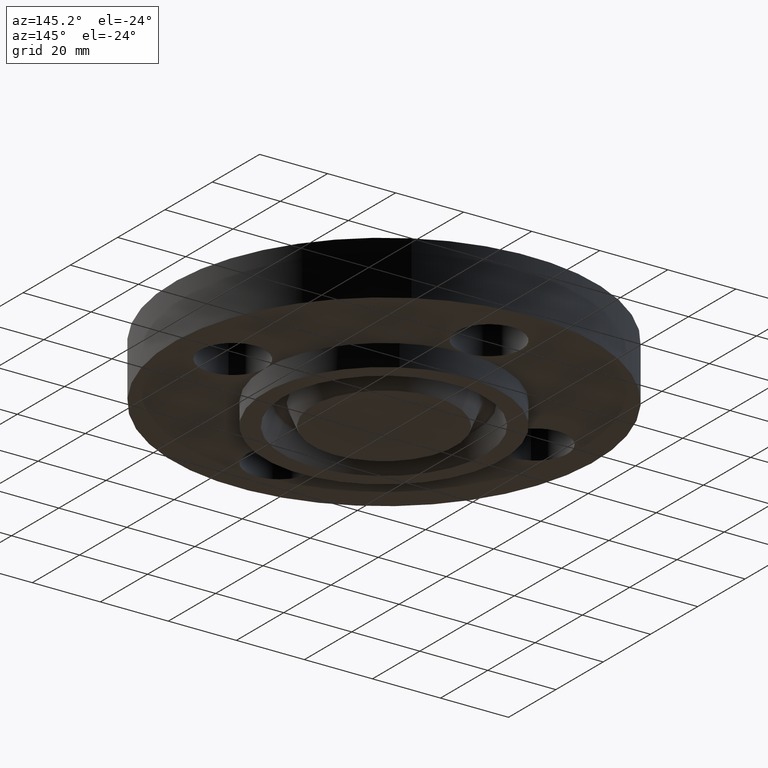
[diagram: clean part render]
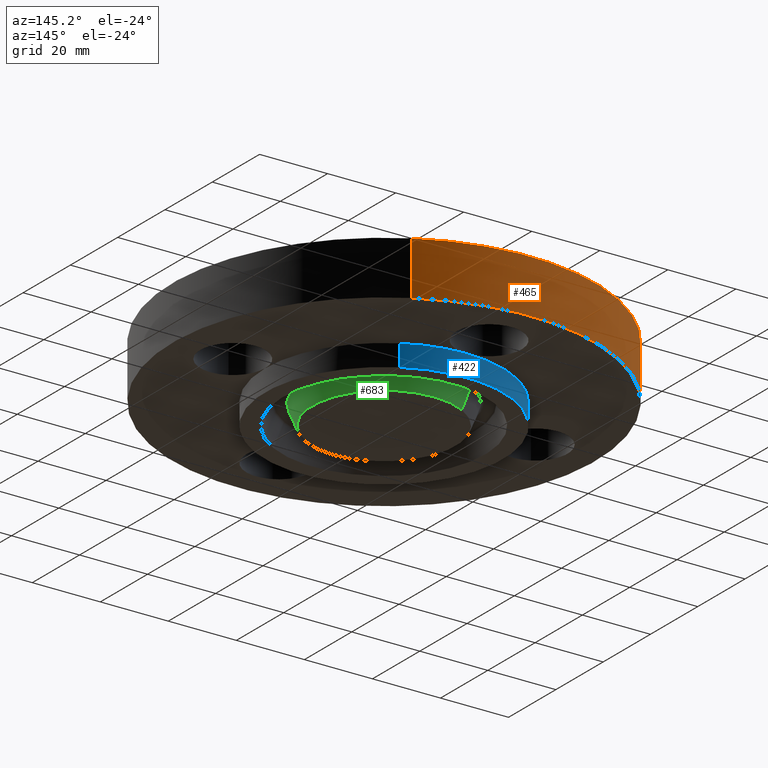
[diagram: same view with three faces highlighted in distinct colors, each labeled with its STEP entity id]
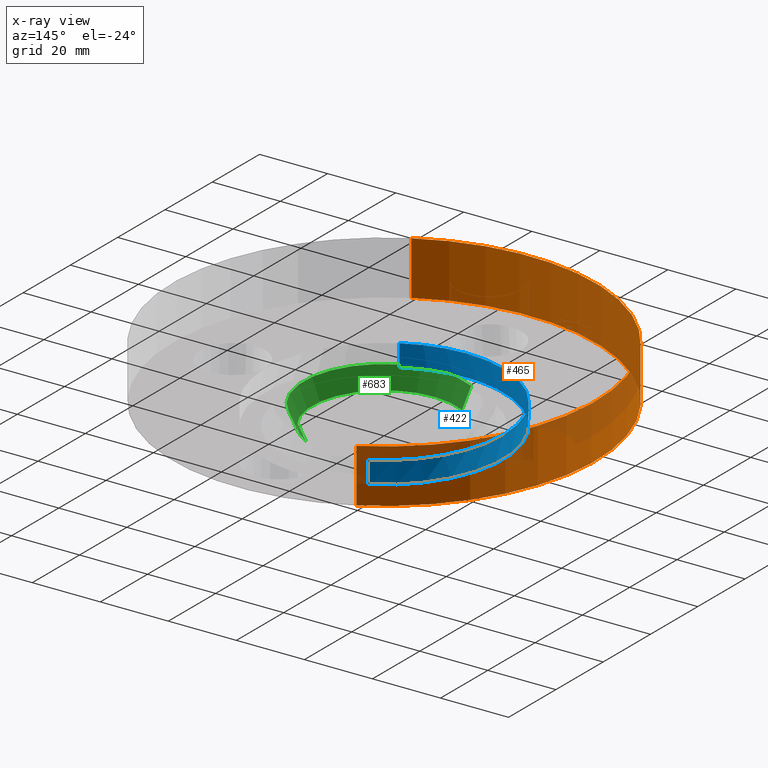
[diagram: x-ray of the same camera — body ghosted, the three highlighted faces saturated]
A machine part, auxiliary view with three faces highlighted in distinct colors.
The next image is the same camera in x-ray (body ghosted, the three faces saturated) — at least one of them is partly hidden behind the body in this view.
Their STEP definitions:

[orange] entity #465 — the highlighted cylindrical surface (partial cylindrical patch) has radius 61.976 mm, axis along (0, 0, -1).
#298=AXIS2_PLACEMENT_3D('Circle Axis2P3D',#296,#297,$) ;
#426=AXIS2_PLACEMENT_3D('Cylinder Axis2P3D',#423,#424,#425) ;
#456=AXIS2_PLACEMENT_3D('Circle Axis2P3D',#454,#455,$) ;
#296=CARTESIAN_POINT('Axis2P3D Location',(0.,0.,0.)) ;
#300=CARTESIAN_POINT('Vertex',(-1.1697983142,-2.14130145102,1.39870617276E-016)) ;
#302=CARTESIAN_POINT('Vertex',(1.1697983142,2.14130145102,1.39870617276E-016)) ;
#423=CARTESIAN_POINT('Axis2P3D Location',(0.,0.,0.185000000001)) ;
#428=CARTESIAN_POINT('Line Origine',(1.1697983142,2.14130145102,0.310000000001)) ;
#432=CARTESIAN_POINT('Vertex',(1.1697983142,2.14130145102,0.620000000002)) ;
#439=CARTESIAN_POINT('Vertex',(-1.1697983142,-2.14130145102,0.620000000002)) ;
#442=CARTESIAN_POINT('Line Origine',(-1.1697983142,-2.14130145102,0.310000000001)) ;
#454=CARTESIAN_POINT('Axis2P3D Location',(0.,0.,0.620000000002)) ;
#297=DIRECTION('Axis2P3D Direction',(0.,0.,-0.0393700787402)) ;
#424=DIRECTION('Axis2P3D Direction',(0.,0.,-0.0393700787402)) ;
#425=DIRECTION('Axis2P3D XDirection',(-0.0188750212049,-0.0345504945626,0.)) ;
#429=DIRECTION('Vector Direction',(0.,0.,-0.0393700787402)) ;
#443=DIRECTION('Vector Direction',(0.,0.,-0.0393700787402)) ;
#455=DIRECTION('Axis2P3D Direction',(0.,0.,-0.0393700787402)) ;
#430=VECTOR('Line Direction',#429,0.0393700787402) ;
#444=VECTOR('Line Direction',#443,0.0393700787402) ;
#460=ORIENTED_EDGE('',*,*,#304,.F.) ;
#461=ORIENTED_EDGE('',*,*,#446,.T.) ;
#462=ORIENTED_EDGE('',*,*,#458,.T.) ;
#463=ORIENTED_EDGE('',*,*,#434,.F.) ;
#465=ADVANCED_FACE('PartBody',(#464),#427,.T.) ;
#299=CIRCLE('generated circle',#298,2.44000000001) ;
#457=CIRCLE('generated circle',#456,2.44000000001) ;
#427=CYLINDRICAL_SURFACE('generated cylinder',#426,2.44000000001) ;
#304=EDGE_CURVE('',#301,#303,#299,.T.) ;
#434=EDGE_CURVE('',#303,#433,#431,.F.) ;
#446=EDGE_CURVE('',#301,#440,#445,.F.) ;
#458=EDGE_CURVE('',#440,#433,#457,.T.) ;
#459=EDGE_LOOP('',(#460,#461,#462,#463)) ;
#464=FACE_OUTER_BOUND('',#459,.T.) ;
#431=LINE('Line',#428,#430) ;
#445=LINE('Line',#442,#444) ;
#301=VERTEX_POINT('',#300) ;
#303=VERTEX_POINT('',#302) ;
#433=VERTEX_POINT('',#432) ;
#440=VERTEX_POINT('',#439) ;

[blue] entity #422 — the highlighted cylindrical surface (partial cylindrical patch) has radius 34.925 mm, axis along (0, 0, -1).
#70=AXIS2_PLACEMENT_3D('Circle Axis2P3D',#68,#69,$) ;
#328=AXIS2_PLACEMENT_3D('Circle Axis2P3D',#326,#327,$) ;
#354=AXIS2_PLACEMENT_3D('Circle Axis2P3D',#352,#353,$) ;
#359=AXIS2_PLACEMENT_3D('Circle Axis2P3D',#357,#358,$) ;
#393=AXIS2_PLACEMENT_3D('Cylinder Axis2P3D',#390,#391,#392) ;
#63=CARTESIAN_POINT('Vertex',(0.659210115583,1.2066760226,-0.250000000001)) ;
#65=CARTESIAN_POINT('Vertex',(-0.659210115583,-1.2066760226,-0.250000000001)) ;
#68=CARTESIAN_POINT('Axis2P3D Location',(0.,0.,-0.250000000001)) ;
#179=CARTESIAN_POINT('Vertex',(-1.37500000001,-2.79741234551E-016,0.)) ;
#323=CARTESIAN_POINT('Vertex',(0.659210115583,1.2066760226,1.39870617276E-016)) ;
#326=CARTESIAN_POINT('Axis2P3D Location',(0.,0.,0.)) ;
#330=CARTESIAN_POINT('Vertex',(-5.47434258046E-015,1.37500000001,1.04902962957E-016)) ;
#352=CARTESIAN_POINT('Axis2P3D Location',(0.,0.,0.)) ;
#357=CARTESIAN_POINT('Axis2P3D Location',(0.,0.,0.)) ;
#361=CARTESIAN_POINT('Vertex',(-0.659210115583,-1.2066760226,1.39870617276E-016)) ;
#390=CARTESIAN_POINT('Axis2P3D Location',(0.,0.,0.185000000001)) ;
#395=CARTESIAN_POINT('Line Origine',(0.659210115583,1.2066760226,-0.125)) ;
#400=CARTESIAN_POINT('Line Origine',(-0.659210115583,-1.2066760226,-0.125)) ;
#69=DIRECTION('Axis2P3D Direction',(0.,0.,-0.0393700787402)) ;
#327=DIRECTION('Axis2P3D Direction',(0.,0.,-0.0393700787402)) ;
#353=DIRECTION('Axis2P3D Direction',(0.,0.,-0.0393700787402)) ;
#358=DIRECTION('Axis2P3D Direction',(0.,0.,-0.0393700787402)) ;
#391=DIRECTION('Axis2P3D Direction',(0.,0.,-0.0393700787402)) ;
#392=DIRECTION('Axis2P3D XDirection',(-0.0188750212049,-0.0345504945626,0.)) ;
#396=DIRECTION('Vector Direction',(0.,0.,-0.0393700787402)) ;
#401=DIRECTION('Vector Direction',(0.,0.,-0.0393700787402)) ;
#397=VECTOR('Line Direction',#396,0.0393700787402) ;
#402=VECTOR('Line Direction',#401,0.0393700787402) ;
#415=ORIENTED_EDGE('',*,*,#72,.F.) ;
#416=ORIENTED_EDGE('',*,*,#404,.T.) ;
#417=ORIENTED_EDGE('',*,*,#363,.T.) ;
#418=ORIENTED_EDGE('',*,*,#356,.T.) ;
#419=ORIENTED_EDGE('',*,*,#332,.T.) ;
#420=ORIENTED_EDGE('',*,*,#399,.F.) ;
#422=ADVANCED_FACE('PartBody',(#421),#394,.T.) ;
#71=CIRCLE('generated circle',#70,1.37500000001) ;
#329=CIRCLE('generated circle',#328,1.37500000001) ;
#355=CIRCLE('generated circle',#354,1.37500000001) ;
#360=CIRCLE('generated circle',#359,1.37500000001) ;
#394=CYLINDRICAL_SURFACE('generated cylinder',#393,1.37500000001) ;
#72=EDGE_CURVE('',#66,#64,#71,.T.) ;
#332=EDGE_CURVE('',#331,#324,#329,.T.) ;
#356=EDGE_CURVE('',#180,#331,#355,.T.) ;
#363=EDGE_CURVE('',#362,#180,#360,.T.) ;
#399=EDGE_CURVE('',#64,#324,#398,.F.) ;
#404=EDGE_CURVE('',#66,#362,#403,.F.) ;
#414=EDGE_LOOP('',(#415,#416,#417,#418,#419,#420)) ;
#421=FACE_OUTER_BOUND('',#414,.T.) ;
#398=LINE('Line',#395,#397) ;
#403=LINE('Line',#400,#402) ;
#64=VERTEX_POINT('',#63) ;
#66=VERTEX_POINT('',#65) ;
#180=VERTEX_POINT('',#179) ;
#324=VERTEX_POINT('',#323) ;
#331=VERTEX_POINT('',#330) ;
#362=VERTEX_POINT('',#361) ;

[green] entity #683 — the highlighted conical surface has half-angle 23 deg.
#42=AXIS2_PLACEMENT_3D('Circle Axis2P3D',#40,#41,$) ;
#633=AXIS2_PLACEMENT_3D('Circle Axis2P3D',#631,#632,$) ;
#665=AXIS2_PLACEMENT_3D('Cone Axis2P3D',#662,#663,#664) ;
#40=CARTESIAN_POINT('Axis2P3D Location',(1.39870617276E-016,0.,-0.250000000001)) ;
#44=CARTESIAN_POINT('Vertex',(-0.39701228852,0.726726119504,-0.250000000001)) ;
#46=CARTESIAN_POINT('Vertex',(0.39701228852,-0.726726119504,-0.250000000001)) ;
#628=CARTESIAN_POINT('Vertex',(0.44400745926,-0.812750202525,-0.0190701156784)) ;
#631=CARTESIAN_POINT('Axis2P3D Location',(0.,0.,-0.0190701156784)) ;
#635=CARTESIAN_POINT('Vertex',(-0.44400745926,0.812750202525,-0.0190701156784)) ;
#662=CARTESIAN_POINT('Axis2P3D Location',(0.,0.,-0.310000000001)) ;
#667=CARTESIAN_POINT('Line Origine',(-0.42050987389,0.769738161014,-0.13453505784)) ;
#672=CARTESIAN_POINT('Line Origine',(0.42050987389,-0.769738161014,-0.13453505784)) ;
#41=DIRECTION('Axis2P3D Direction',(0.,0.,-0.0393700787402)) ;
#632=DIRECTION('Axis2P3D Direction',(0.,0.,0.0393700787402)) ;
#663=DIRECTION('Axis2P3D Direction',(0.,0.,0.0393700787402)) ;
#664=DIRECTION('Axis2P3D XDirection',(-0.0188750212049,0.0345504945626,0.)) ;
#668=DIRECTION('Vector Direction',(-0.00737505833565,0.0134999537303,0.0362403485611)) ;
#673=DIRECTION('Vector Direction',(0.00737505833565,-0.0134999537303,0.0362403485611)) ;
#669=VECTOR('Line Direction',#668,0.0393700787402) ;
#674=VECTOR('Line Direction',#673,0.0393700787402) ;
#678=ORIENTED_EDGE('',*,*,#671,.F.) ;
#679=ORIENTED_EDGE('',*,*,#637,.F.) ;
#680=ORIENTED_EDGE('',*,*,#676,.T.) ;
#681=ORIENTED_EDGE('',*,*,#48,.F.) ;
#683=ADVANCED_FACE('PartBody',(#682),#666,.T.) ;
#43=CIRCLE('generated circle',#42,0.828100000003) ;
#634=CIRCLE('generated circle',#633,0.926123920208) ;
#666=CONICAL_SURFACE('Cone',#665,0.802631511031,0.401425727959) ;
#48=EDGE_CURVE('',#45,#47,#43,.T.) ;
#637=EDGE_CURVE('',#629,#636,#634,.T.) ;
#671=EDGE_CURVE('',#636,#45,#670,.F.) ;
#676=EDGE_CURVE('',#629,#47,#675,.F.) ;
#677=EDGE_LOOP('',(#678,#679,#680,#681)) ;
#682=FACE_OUTER_BOUND('',#677,.T.) ;
#670=LINE('Line',#667,#669) ;
#675=LINE('Line',#672,#674) ;
#45=VERTEX_POINT('',#44) ;
#47=VERTEX_POINT('',#46) ;
#629=VERTEX_POINT('',#628) ;
#636=VERTEX_POINT('',#635) ;